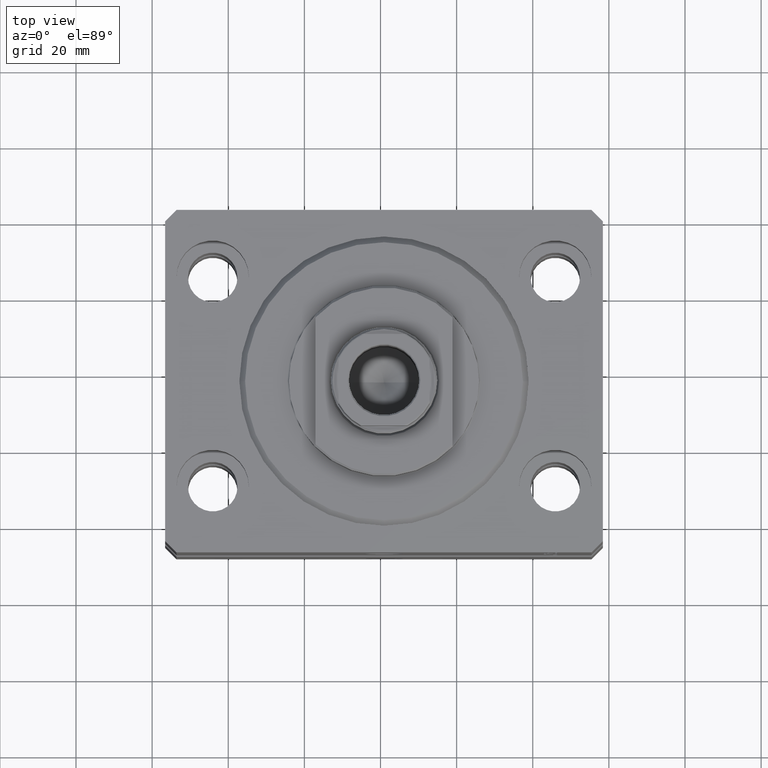
[diagram: clean part render]
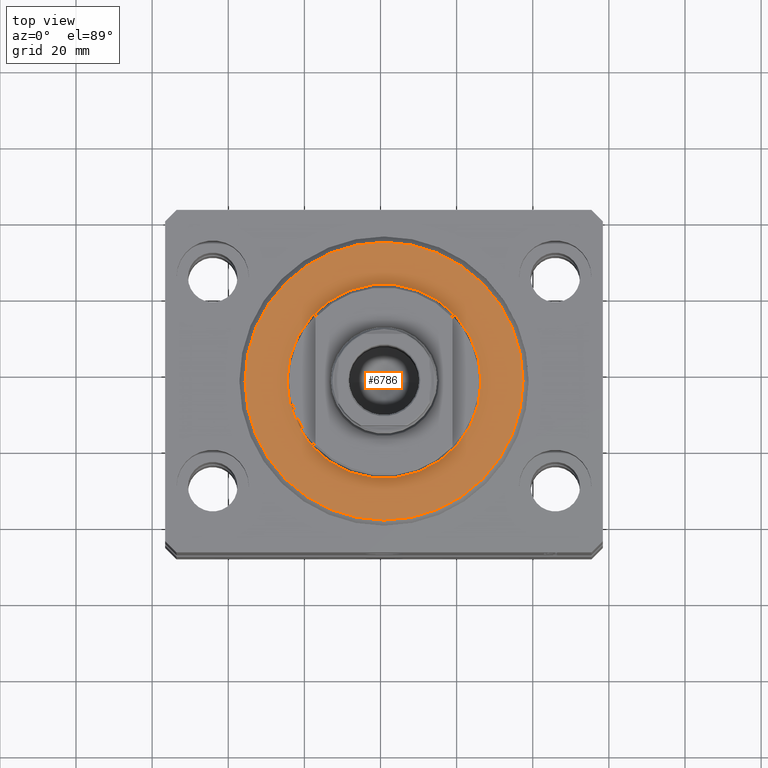
[diagram: same view with one face highlighted and labeled with its STEP entity id]
A machine part, top view. The second image highlights one B-rep face of the part: STEP entity #6786.
In plain terms, the highlighted planar face has unit normal (0, 0, -1).
Its self-contained STEP definition (entity closure, byte-faithful):
#606 = CARTESIAN_POINT ( 'NONE',  ( 0.000000000000000000, 0.000000000000000000, 0.000000000000000000 ) ) ;
#806 = CARTESIAN_POINT ( 'NONE',  ( 25.50000000000000355, 0.000000000000000000, 2.168404344971008868E-16 ) ) ;
#1572 = CARTESIAN_POINT ( 'NONE',  ( 0.000000000000000000, 0.000000000000000000, 0.000000000000000000 ) ) ;
#1576 = CARTESIAN_POINT ( 'NONE',  ( 36.50000000000000000, 0.000000000000000000, 0.000000000000000000 ) ) ;
#1787 = AXIS2_PLACEMENT_3D ( 'NONE', #3012, #20229, #16976 ) ;
#3012 = CARTESIAN_POINT ( 'NONE',  ( 0.000000000000000000, 0.000000000000000000, 0.000000000000000000 ) ) ;
#4844 = EDGE_LOOP ( 'NONE', ( #31375, #40864 ) ) ;
#5272 = DIRECTION ( 'NONE',  ( 1.000000000000000000, 0.000000000000000000, 0.000000000000000000 ) ) ;
#5347 = FACE_OUTER_BOUND ( 'NONE', #29872, .T. ) ;
#6786 = ADVANCED_FACE ( 'NONE', ( #40685, #5347 ), #26297, .F. ) ;
#6932 = EDGE_CURVE ( 'NONE', #10051, #21515, #34427, .T. ) ;
#7787 = DIRECTION ( 'NONE',  ( 1.000000000000000000, 0.000000000000000000, 0.000000000000000000 ) ) ;
#10051 = VERTEX_POINT ( 'NONE', #806 ) ;
#10812 = DIRECTION ( 'NONE',  ( 0.000000000000000000, 0.000000000000000000, 1.000000000000000000 ) ) ;
#11685 = EDGE_CURVE ( 'NONE', #21515, #10051, #24198, .T. ) ;
#12026 = DIRECTION ( 'NONE',  ( -0.000000000000000000, -0.000000000000000000, -1.000000000000000000 ) ) ;
#13017 = DIRECTION ( 'NONE',  ( 1.000000000000000000, 0.000000000000000000, -0.000000000000000000 ) ) ;
#15563 = ORIENTED_EDGE ( 'NONE', *, *, #31718, .T. ) ;
#15915 = AXIS2_PLACEMENT_3D ( 'NONE', #45114, #30725, #44887 ) ;
#16976 = DIRECTION ( 'NONE',  ( 1.000000000000000000, 0.000000000000000000, 0.000000000000000000 ) ) ;
#17600 = CARTESIAN_POINT ( 'NONE',  ( -36.50000000000000000, 4.561809326823889791E-15, 0.000000000000000000 ) ) ;
#19777 = CARTESIAN_POINT ( 'NONE',  ( 0.000000000000000000, 0.000000000000000000, 0.000000000000000000 ) ) ;
#20229 = DIRECTION ( 'NONE',  ( 0.000000000000000000, 0.000000000000000000, 1.000000000000000000 ) ) ;
#21515 = VERTEX_POINT ( 'NONE', #45563 ) ;
#23608 = VERTEX_POINT ( 'NONE', #17600 ) ;
#24198 = CIRCLE ( 'NONE', #33832, 25.50000000000000355 ) ;
#26283 = AXIS2_PLACEMENT_3D ( 'NONE', #19777, #41365, #13017 ) ;
#26297 = PLANE ( 'NONE',  #26283 ) ;
#28251 = CIRCLE ( 'NONE', #42333, 36.50000000000000000 ) ;
#29872 = EDGE_LOOP ( 'NONE', ( #15563, #40159 ) ) ;
#30725 = DIRECTION ( 'NONE',  ( -0.000000000000000000, -0.000000000000000000, -1.000000000000000000 ) ) ;
#31375 = ORIENTED_EDGE ( 'NONE', *, *, #6932, .T. ) ;
#31718 = EDGE_CURVE ( 'NONE', #43589, #23608, #28251, .T. ) ;
#33832 = AXIS2_PLACEMENT_3D ( 'NONE', #606, #10812, #7787 ) ;
#34427 = CIRCLE ( 'NONE', #1787, 25.50000000000000355 ) ;
#37399 = CIRCLE ( 'NONE', #15915, 36.50000000000000000 ) ;
#40159 = ORIENTED_EDGE ( 'NONE', *, *, #44269, .T. ) ;
#40685 = FACE_BOUND ( 'NONE', #4844, .T. ) ;
#40864 = ORIENTED_EDGE ( 'NONE', *, *, #11685, .T. ) ;
#41365 = DIRECTION ( 'NONE',  ( 0.000000000000000000, 0.000000000000000000, 1.000000000000000000 ) ) ;
#42333 = AXIS2_PLACEMENT_3D ( 'NONE', #1572, #12026, #5272 ) ;
#43589 = VERTEX_POINT ( 'NONE', #1576 ) ;
#44269 = EDGE_CURVE ( 'NONE', #23608, #43589, #37399, .T. ) ;
#44887 = DIRECTION ( 'NONE',  ( 1.000000000000000000, 0.000000000000000000, 0.000000000000000000 ) ) ;
#45114 = CARTESIAN_POINT ( 'NONE',  ( 0.000000000000000000, 0.000000000000000000, 0.000000000000000000 ) ) ;
#45563 = CARTESIAN_POINT ( 'NONE',  ( -25.50000000000000355, 3.122849337825751011E-15, 2.168404344971008868E-16 ) ) ;